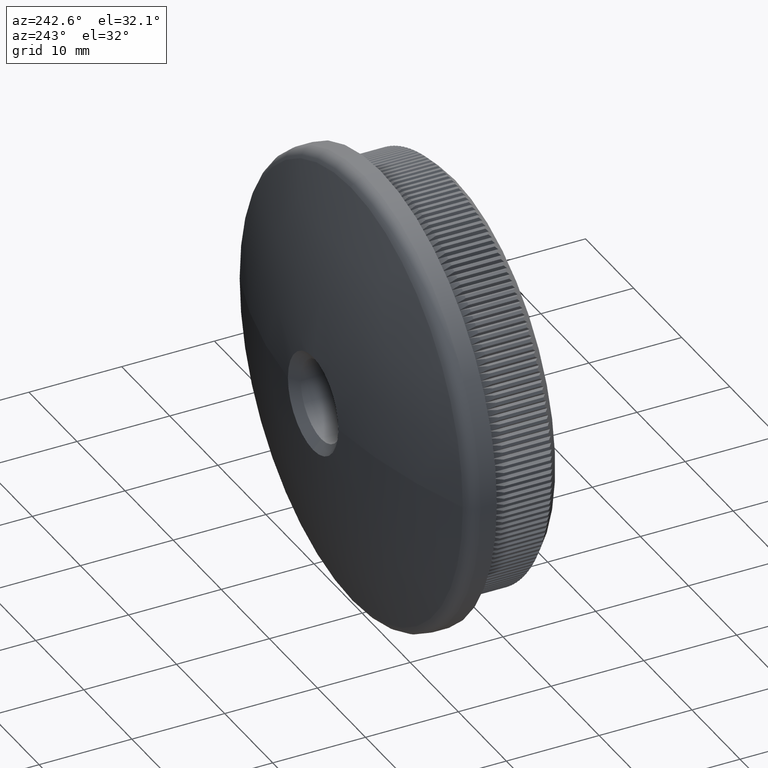
[diagram: clean part render]
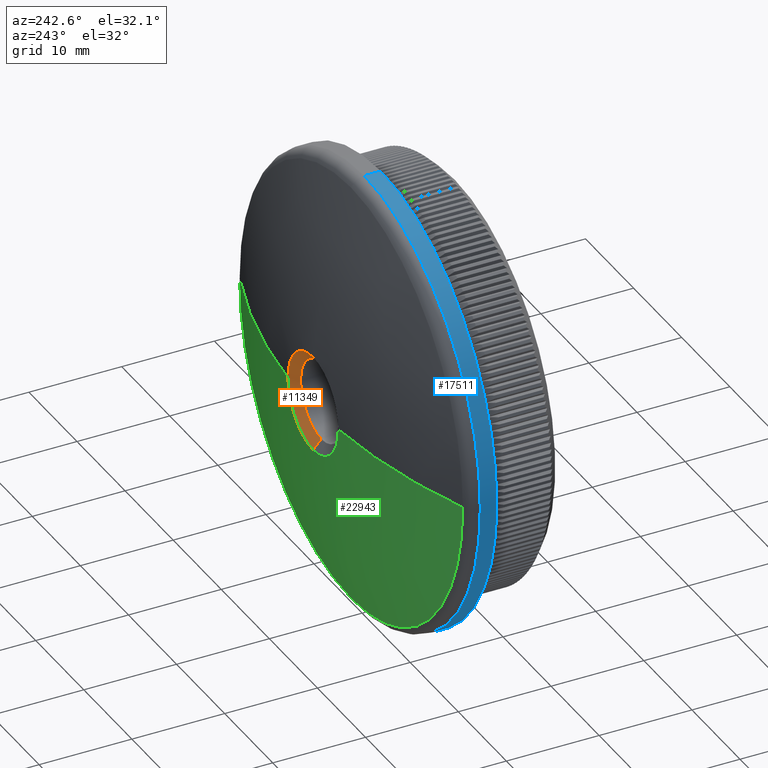
[diagram: same view with three faces highlighted in distinct colors, each labeled with its STEP entity id]
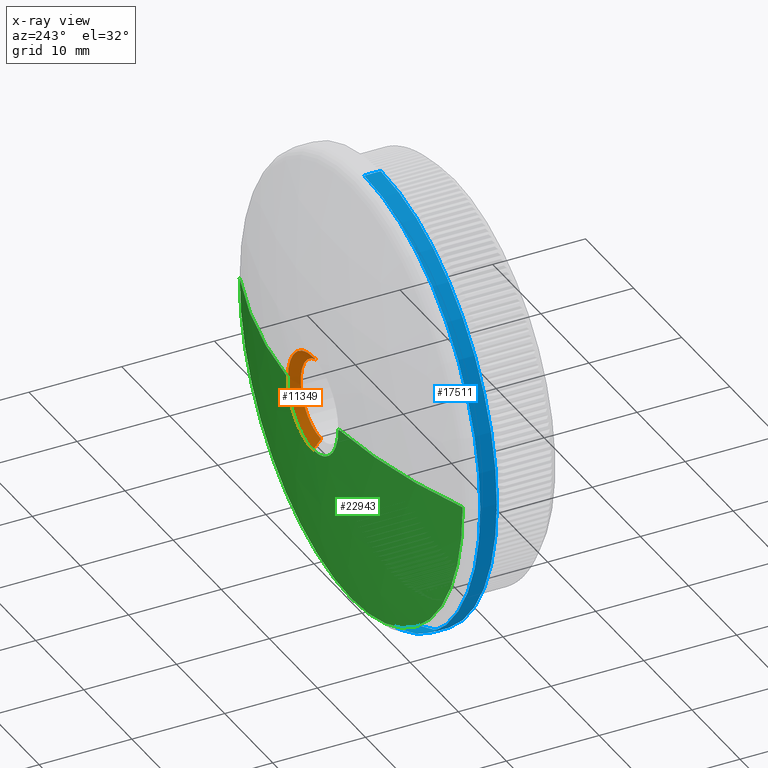
[diagram: x-ray of the same camera — body ghosted, the three highlighted faces saturated]
A machine part, auxiliary view with three faces highlighted in distinct colors.
The next image is the same camera in x-ray (body ghosted, the three faces saturated) — at least one of them is partly hidden behind the body in this view.
Their STEP definitions:

[orange] entity #11349 — the highlighted conical surface has half-angle 48.784 deg.
#444 = AXIS2_PLACEMENT_3D ( 'NONE', #12557, #17534, #12665 ) ;
#485 = DIRECTION ( 'NONE',  ( 0.0000000000000000000, 0.0000000000000000000, 1.000000000000000000 ) ) ;
#517 = EDGE_LOOP ( 'NONE', ( #24533, #5877, #12691, #8916, #28129 ) ) ;
#935 = CARTESIAN_POINT ( 'NONE',  ( 5.204748896376246800E-016, 14.41958930226687500, -4.249999999999995600 ) ) ;
#1314 = CIRCLE ( 'NONE', #28760, 4.249999999999995600 ) ;
#3304 = VECTOR ( 'NONE', #13474, 1000.000000000000200 ) ;
#3840 = CARTESIAN_POINT ( 'NONE',  ( 0.0000000000000000000, 14.41958930226687500, 4.249999999999995600 ) ) ;
#5877 = ORIENTED_EDGE ( 'NONE', *, *, #13600, .F. ) ;
#6069 = VERTEX_POINT ( 'NONE', #22614 ) ;
#7856 = CARTESIAN_POINT ( 'NONE',  ( 0.0000000000000000000, 15.28647477270349200, 0.0000000000000000000 ) ) ;
#7902 = CARTESIAN_POINT ( 'NONE',  ( 0.0000000000000000000, 14.41958930226687500, 0.0000000000000000000 ) ) ;
#8916 = ORIENTED_EDGE ( 'NONE', *, *, #21765, .F. ) ;
#9194 = CARTESIAN_POINT ( 'NONE',  ( 0.0000000000000000000, 15.28647477270349200, 5.239684941423142600 ) ) ;
#9661 = VERTEX_POINT ( 'NONE', #10794 ) ;
#9717 = CONICAL_SURFACE ( 'NONE', #27009, 4.249999999999995600, 0.8514451387859506300 ) ;
#10068 = LINE ( 'NONE', #935, #3304 ) ;
#10448 = DIRECTION ( 'NONE',  ( -0.0000000000000000000, -1.000000000000000000, -0.0000000000000000000 ) ) ;
#10794 = CARTESIAN_POINT ( 'NONE',  ( 5.239684941423129200, 15.28647477270349200, 0.0000000000000000000 ) ) ;
#11349 = ADVANCED_FACE ( 'NONE', ( #16471 ), #9717, .F. ) ;
#12057 = VERTEX_POINT ( 'NONE', #30281 ) ;
#12557 = CARTESIAN_POINT ( 'NONE',  ( 0.0000000000000000000, 15.28647477270349200, 0.0000000000000000000 ) ) ;
#12665 = DIRECTION ( 'NONE',  ( 0.0000000000000000000, 0.0000000000000000000, -1.000000000000000000 ) ) ;
#12691 = ORIENTED_EDGE ( 'NONE', *, *, #21217, .T. ) ;
#13389 = CIRCLE ( 'NONE', #15959, 5.239684941423129200 ) ;
#13474 = DIRECTION ( 'NONE',  ( 9.212202102795749600E-017, 0.6588967526473940000, -0.7522333875538355100 ) ) ;
#13600 = EDGE_CURVE ( 'NONE', #15328, #12057, #1314, .T. ) ;
#13823 = DIRECTION ( 'NONE',  ( 0.0000000000000000000, 1.000000000000000000, 0.0000000000000000000 ) ) ;
#15158 = EDGE_CURVE ( 'NONE', #12057, #6069, #10068, .T. ) ;
#15328 = VERTEX_POINT ( 'NONE', #32149 ) ;
#15959 = AXIS2_PLACEMENT_3D ( 'NONE', #7856, #10448, #31010 ) ;
#16471 = FACE_OUTER_BOUND ( 'NONE', #517, .T. ) ;
#16981 = LINE ( 'NONE', #3840, #20982 ) ;
#17534 = DIRECTION ( 'NONE',  ( -0.0000000000000000000, -1.000000000000000000, -0.0000000000000000000 ) ) ;
#18334 = VERTEX_POINT ( 'NONE', #9194 ) ;
#20982 = VECTOR ( 'NONE', #24095, 1000.000000000000200 ) ;
#21217 = EDGE_CURVE ( 'NONE', #15328, #18334, #16981, .T. ) ;
#21765 = EDGE_CURVE ( 'NONE', #9661, #18334, #13389, .T. ) ;
#22353 = EDGE_CURVE ( 'NONE', #6069, #9661, #29202, .T. ) ;
#22614 = CARTESIAN_POINT ( 'NONE',  ( 6.416763392054438900E-016, 15.28647477270349200, -5.239684941423142600 ) ) ;
#24095 = DIRECTION ( 'NONE',  ( 0.0000000000000000000, 0.6588967526473940000, 0.7522333875538355100 ) ) ;
#24533 = ORIENTED_EDGE ( 'NONE', *, *, #15158, .F. ) ;
#26439 = CARTESIAN_POINT ( 'NONE',  ( 0.0000000000000000000, 14.41958930226687500, 0.0000000000000000000 ) ) ;
#26648 = DIRECTION ( 'NONE',  ( 0.0000000000000000000, 0.0000000000000000000, 1.000000000000000000 ) ) ;
#27009 = AXIS2_PLACEMENT_3D ( 'NONE', #26439, #13823, #26648 ) ;
#28129 = ORIENTED_EDGE ( 'NONE', *, *, #22353, .F. ) ;
#28760 = AXIS2_PLACEMENT_3D ( 'NONE', #7902, #31065, #485 ) ;
#29202 = CIRCLE ( 'NONE', #444, 5.239684941423129200 ) ;
#30281 = CARTESIAN_POINT ( 'NONE',  ( 0.0000000000000000000, 14.41958930226687500, -4.249999999999995600 ) ) ;
#31010 = DIRECTION ( 'NONE',  ( 0.0000000000000000000, 0.0000000000000000000, -1.000000000000000000 ) ) ;
#31065 = DIRECTION ( 'NONE',  ( 0.0000000000000000000, 1.000000000000000000, 0.0000000000000000000 ) ) ;
#32149 = CARTESIAN_POINT ( 'NONE',  ( 5.204748896376246800E-016, 14.41958930226687500, 4.249999999999995600 ) ) ;

[blue] entity #17511 — the highlighted cylindrical surface (partial cylindrical patch) has radius 24.15 mm, axis along (-0, -1, -0).
#2263 = DIRECTION ( 'NONE',  ( 0.0000000000000000000, 0.0000000000000000000, -1.000000000000000000 ) ) ;
#4140 = AXIS2_PLACEMENT_3D ( 'NONE', #12477, #15708, #2263 ) ;
#4347 = VERTEX_POINT ( 'NONE', #9782 ) ;
#4979 = VERTEX_POINT ( 'NONE', #25574 ) ;
#5058 = DIRECTION ( 'NONE',  ( 0.0000000000000000000, 0.0000000000000000000, -1.000000000000000000 ) ) ;
#5166 = AXIS2_PLACEMENT_3D ( 'NONE', #32866, #9856, #5058 ) ;
#5269 = CIRCLE ( 'NONE', #5166, 24.15000000000000200 ) ;
#6411 = CYLINDRICAL_SURFACE ( 'NONE', #7616, 24.15000000000000200 ) ;
#7009 = CARTESIAN_POINT ( 'NONE',  ( 2.957522019940858300E-015, 9.780020886796899400, 24.15000000000000200 ) ) ;
#7452 = LINE ( 'NONE', #19104, #18539 ) ;
#7616 = AXIS2_PLACEMENT_3D ( 'NONE', #26770, #25095, #20152 ) ;
#8313 = EDGE_LOOP ( 'NONE', ( #26603, #9631, #25585, #23921 ) ) ;
#9609 = FACE_OUTER_BOUND ( 'NONE', #8313, .T. ) ;
#9631 = ORIENTED_EDGE ( 'NONE', *, *, #13002, .T. ) ;
#9782 = CARTESIAN_POINT ( 'NONE',  ( 0.0000000000000000000, 8.000000000000000000, -24.14999999999999900 ) ) ;
#9856 = DIRECTION ( 'NONE',  ( -0.0000000000000000000, -1.000000000000000000, -0.0000000000000000000 ) ) ;
#12477 = CARTESIAN_POINT ( 'NONE',  ( 0.0000000000000000000, 8.000000000000000000, 0.0000000000000000000 ) ) ;
#13002 = EDGE_CURVE ( 'NONE', #22242, #4979, #5269, .T. ) ;
#13234 = CIRCLE ( 'NONE', #4140, 24.14999999999999900 ) ;
#13639 = EDGE_CURVE ( 'NONE', #4979, #4347, #19549, .T. ) ;
#15064 = EDGE_CURVE ( 'NONE', #29227, #4347, #13234, .T. ) ;
#15708 = DIRECTION ( 'NONE',  ( -0.0000000000000000000, -1.000000000000000000, -0.0000000000000000000 ) ) ;
#16997 = CARTESIAN_POINT ( 'NONE',  ( 2.957522019940858300E-015, 8.000000000000000000, 24.14999999999999900 ) ) ;
#17511 = ADVANCED_FACE ( 'NONE', ( #9609 ), #6411, .T. ) ;
#18539 = VECTOR ( 'NONE', #21650, 1000.000000000000000 ) ;
#19104 = CARTESIAN_POINT ( 'NONE',  ( 2.957522019940858300E-015, 0.0000000000000000000, 24.15000000000000200 ) ) ;
#19549 = LINE ( 'NONE', #25628, #32196 ) ;
#20152 = DIRECTION ( 'NONE',  ( 0.0000000000000000000, 0.0000000000000000000, -1.000000000000000000 ) ) ;
#20588 = DIRECTION ( 'NONE',  ( -0.0000000000000000000, -1.000000000000000000, -0.0000000000000000000 ) ) ;
#21650 = DIRECTION ( 'NONE',  ( -0.0000000000000000000, -1.000000000000000000, -0.0000000000000000000 ) ) ;
#22242 = VERTEX_POINT ( 'NONE', #7009 ) ;
#23921 = ORIENTED_EDGE ( 'NONE', *, *, #15064, .F. ) ;
#25095 = DIRECTION ( 'NONE',  ( -0.0000000000000000000, -1.000000000000000000, -0.0000000000000000000 ) ) ;
#25574 = CARTESIAN_POINT ( 'NONE',  ( 0.0000000000000000000, 9.780020886796899400, -24.15000000000000200 ) ) ;
#25585 = ORIENTED_EDGE ( 'NONE', *, *, #13639, .T. ) ;
#25628 = CARTESIAN_POINT ( 'NONE',  ( 0.0000000000000000000, 0.0000000000000000000, -24.15000000000000200 ) ) ;
#26603 = ORIENTED_EDGE ( 'NONE', *, *, #32439, .F. ) ;
#26770 = CARTESIAN_POINT ( 'NONE',  ( 0.0000000000000000000, 0.0000000000000000000, 0.0000000000000000000 ) ) ;
#29227 = VERTEX_POINT ( 'NONE', #16997 ) ;
#32196 = VECTOR ( 'NONE', #20588, 1000.000000000000000 ) ;
#32439 = EDGE_CURVE ( 'NONE', #22242, #29227, #7452, .T. ) ;
#32866 = CARTESIAN_POINT ( 'NONE',  ( 0.0000000000000000000, 9.780020886796899400, 0.0000000000000000000 ) ) ;

[green] entity #22943 — the highlighted spherical surface has radius 64.3949 mm.
#114 = AXIS2_PLACEMENT_3D ( 'NONE', #9771, #17198, #22277 ) ;
#193 = VERTEX_POINT ( 'NONE', #15055 ) ;
#212 = DIRECTION ( 'NONE',  ( 0.0000000000000000000, 0.0000000000000000000, -1.000000000000000000 ) ) ;
#444 = AXIS2_PLACEMENT_3D ( 'NONE', #12557, #17534, #12665 ) ;
#672 = VERTEX_POINT ( 'NONE', #10247 ) ;
#1713 = CIRCLE ( 'NONE', #28341, 64.39494680851073800 ) ;
#3577 = ORIENTED_EDGE ( 'NONE', *, *, #9584, .T. ) ;
#3867 = ORIENTED_EDGE ( 'NONE', *, *, #27557, .T. ) ;
#4233 = AXIS2_PLACEMENT_3D ( 'NONE', #25601, #5226, #7574 ) ;
#4721 = CARTESIAN_POINT ( 'NONE',  ( 0.0000000000000000000, -48.89494680851073800, 0.0000000000000000000 ) ) ;
#5226 = DIRECTION ( 'NONE',  ( 0.0000000000000000000, 1.000000000000000000, 0.0000000000000000000 ) ) ;
#6069 = VERTEX_POINT ( 'NONE', #22614 ) ;
#6119 = ORIENTED_EDGE ( 'NONE', *, *, #22353, .T. ) ;
#7574 = DIRECTION ( 'NONE',  ( 0.0000000000000000000, 0.0000000000000000000, -1.000000000000000000 ) ) ;
#7621 = DIRECTION ( 'NONE',  ( 1.000000000000000000, 0.0000000000000000000, 0.0000000000000000000 ) ) ;
#7702 = AXIS2_PLACEMENT_3D ( 'NONE', #14472, #26980, #30321 ) ;
#7842 = DIRECTION ( 'NONE',  ( 0.0000000000000000000, 1.000000000000000000, 0.0000000000000000000 ) ) ;
#8044 = DIRECTION ( 'NONE',  ( 0.0000000000000000000, 0.0000000000000000000, 1.000000000000000000 ) ) ;
#8576 = ORIENTED_EDGE ( 'NONE', *, *, #11415, .T. ) ;
#9228 = AXIS2_PLACEMENT_3D ( 'NONE', #17949, #7842, #212 ) ;
#9329 = CARTESIAN_POINT ( 'NONE',  ( 0.0000000000000000000, -48.89494680851073800, 0.0000000000000000000 ) ) ;
#9376 = AXIS2_PLACEMENT_3D ( 'NONE', #4721, #8044, #7621 ) ;
#9412 = EDGE_LOOP ( 'NONE', ( #15324, #15139, #6119, #8576, #3867, #3577 ) ) ;
#9584 = EDGE_CURVE ( 'NONE', #24623, #27591, #14130, .T. ) ;
#9661 = VERTEX_POINT ( 'NONE', #10794 ) ;
#9771 = CARTESIAN_POINT ( 'NONE',  ( 0.0000000000000000000, 15.28647477270349200, 0.0000000000000000000 ) ) ;
#10247 = CARTESIAN_POINT ( 'NONE',  ( -5.239684941423129200, 15.28647477270349200, 1.740827551892606700E-015 ) ) ;
#10794 = CARTESIAN_POINT ( 'NONE',  ( 5.239684941423129200, 15.28647477270349200, 0.0000000000000000000 ) ) ;
#11415 = EDGE_CURVE ( 'NONE', #9661, #193, #13278, .T. ) ;
#12418 = CIRCLE ( 'NONE', #9228, 23.19018648117216600 ) ;
#12557 = CARTESIAN_POINT ( 'NONE',  ( 0.0000000000000000000, 15.28647477270349200, 0.0000000000000000000 ) ) ;
#12665 = DIRECTION ( 'NONE',  ( 0.0000000000000000000, 0.0000000000000000000, -1.000000000000000000 ) ) ;
#13278 = CIRCLE ( 'NONE', #7702, 64.39494680851073800 ) ;
#13833 = EDGE_CURVE ( 'NONE', #672, #27591, #1713, .T. ) ;
#14103 = DIRECTION ( 'NONE',  ( 1.000000000000000000, 0.0000000000000000000, -1.224646799147353200E-016 ) ) ;
#14130 = CIRCLE ( 'NONE', #4233, 23.19018648117216600 ) ;
#14472 = CARTESIAN_POINT ( 'NONE',  ( 0.0000000000000000000, -48.89494680851073800, 0.0000000000000000000 ) ) ;
#15055 = CARTESIAN_POINT ( 'NONE',  ( 23.19018648117216600, 11.17937736945556400, 0.0000000000000000000 ) ) ;
#15139 = ORIENTED_EDGE ( 'NONE', *, *, #27454, .T. ) ;
#15324 = ORIENTED_EDGE ( 'NONE', *, *, #13833, .F. ) ;
#17198 = DIRECTION ( 'NONE',  ( -0.0000000000000000000, -1.000000000000000000, -0.0000000000000000000 ) ) ;
#17534 = DIRECTION ( 'NONE',  ( -0.0000000000000000000, -1.000000000000000000, -0.0000000000000000000 ) ) ;
#17949 = CARTESIAN_POINT ( 'NONE',  ( 0.0000000000000000000, 11.17937736945556700, 0.0000000000000000000 ) ) ;
#18157 = CARTESIAN_POINT ( 'NONE',  ( -23.19018648117216600, 11.17937736945556400, 2.839978764579771300E-015 ) ) ;
#21556 = CIRCLE ( 'NONE', #114, 5.239684941423129200 ) ;
#22277 = DIRECTION ( 'NONE',  ( 0.0000000000000000000, 0.0000000000000000000, -1.000000000000000000 ) ) ;
#22353 = EDGE_CURVE ( 'NONE', #6069, #9661, #29202, .T. ) ;
#22614 = CARTESIAN_POINT ( 'NONE',  ( 6.416763392054438900E-016, 15.28647477270349200, -5.239684941423142600 ) ) ;
#22848 = FACE_OUTER_BOUND ( 'NONE', #9412, .T. ) ;
#22943 = ADVANCED_FACE ( 'NONE', ( #22848 ), #24802, .T. ) ;
#24623 = VERTEX_POINT ( 'NONE', #28666 ) ;
#24802 = SPHERICAL_SURFACE ( 'NONE', #9376, 64.39494680851073800 ) ;
#25601 = CARTESIAN_POINT ( 'NONE',  ( 0.0000000000000000000, 11.17937736945556700, 0.0000000000000000000 ) ) ;
#26980 = DIRECTION ( 'NONE',  ( 0.0000000000000000000, 0.0000000000000000000, -1.000000000000000000 ) ) ;
#27454 = EDGE_CURVE ( 'NONE', #672, #6069, #21556, .T. ) ;
#27557 = EDGE_CURVE ( 'NONE', #193, #24623, #12418, .T. ) ;
#27591 = VERTEX_POINT ( 'NONE', #18157 ) ;
#28341 = AXIS2_PLACEMENT_3D ( 'NONE', #9329, #29276, #14103 ) ;
#28666 = CARTESIAN_POINT ( 'NONE',  ( 0.0000000000000000000, 11.17937736945556700, -23.19018648117216600 ) ) ;
#29202 = CIRCLE ( 'NONE', #444, 5.239684941423129200 ) ;
#29276 = DIRECTION ( 'NONE',  ( 1.224646799147353200E-016, -0.0000000000000000000, 1.000000000000000000 ) ) ;
#30321 = DIRECTION ( 'NONE',  ( -1.000000000000000000, 0.0000000000000000000, 0.0000000000000000000 ) ) ;